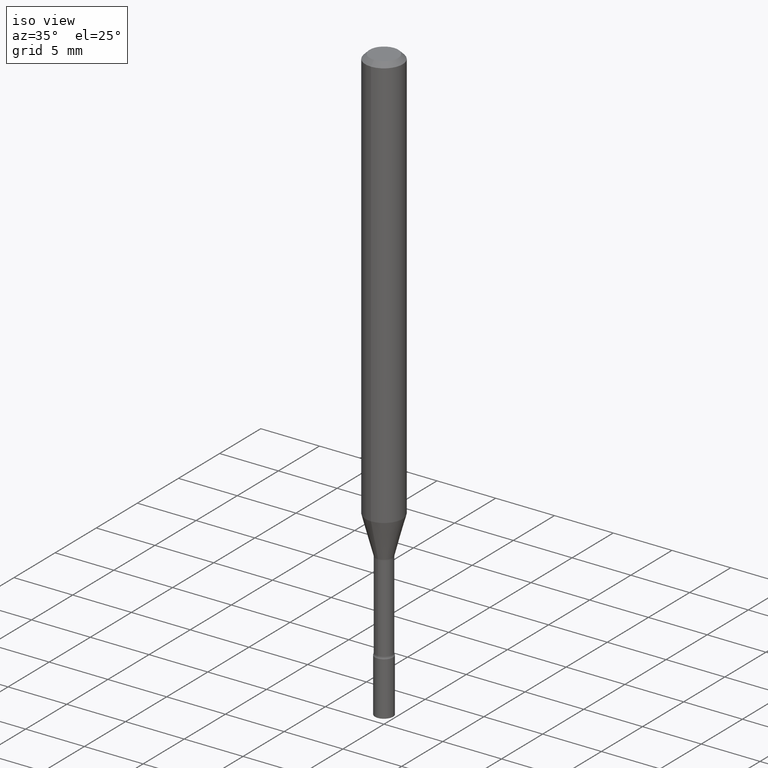
[diagram: clean part render]
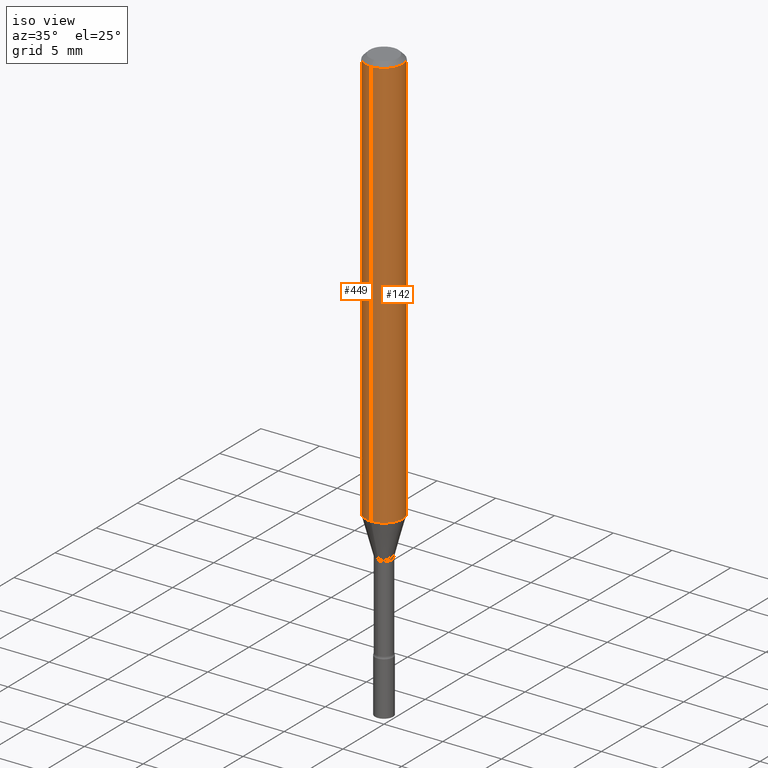
[diagram: same view with one multi-face feature highlighted, each face labeled with its STEP entity id]
A machine part, iso view. The highlighted faces form ONE feature: a constant-radius fillet chain: 2 tangent blend faces with common blend radius 1.5875 mm. The faces share edges in the B-rep.
Their STEP definitions:
[1] entity #449 (Cylinder):
#4 = DIRECTION ( 'NONE',  ( -6.982962677686265922E-15, -1.000000000000000000, 3.491603899015669090E-15 ) ) ;
#10 = ORIENTED_EDGE ( 'NONE', *, *, #105, .T. ) ;
#14 = DIRECTION ( 'NONE',  ( -6.982962677686265922E-15, -1.000000000000000000, 4.370956789862821150E-15 ) ) ;
#22 = CARTESIAN_POINT ( 'NONE',  ( -4.364351673553916201E-16, -0.06250000000000000000, 2.182252436884793182E-16 ) ) ;
#36 = CARTESIAN_POINT ( 'NONE',  ( 4.440892098500967344E-16, 0.06249999999999993755, -0.01500000000000024751 ) ) ;
#43 = EDGE_CURVE ( 'NONE', #404, #53, #149, .T. ) ;
#53 = VERTEX_POINT ( 'NONE', #140 ) ;
#86 = CYLINDRICAL_SURFACE ( 'NONE', #211, 0.06250000000000000000 ) ;
#97 = ORIENTED_EDGE ( 'NONE', *, *, #159, .F. ) ;
#100 = VERTEX_POINT ( 'NONE', #267 ) ;
#105 = EDGE_CURVE ( 'NONE', #53, #100, #265, .T. ) ;
#115 = CARTESIAN_POINT ( 'NONE',  ( 4.440892098500625669E-16, 0.06250000000000000000, -2.182252436884793182E-16 ) ) ;
#139 = FACE_OUTER_BOUND ( 'NONE', #262, .T. ) ;
#140 = CARTESIAN_POINT ( 'NONE',  ( -4.364351673553577484E-16, -0.06250000000000488498, -1.391990657300387513 ) ) ;
#149 = CIRCLE ( 'NONE', #290, 0.06250000000000000000 ) ;
#159 = EDGE_CURVE ( 'NONE', #404, #433, #311, .T. ) ;
#174 = VECTOR ( 'NONE', #346, 39.37007874015748143 ) ;
#179 = CARTESIAN_POINT ( 'NONE',  ( 3.403950599759840032E-29, -4.860280006423417622E-15, -1.391990657300387735 ) ) ;
#211 = AXIS2_PLACEMENT_3D ( 'NONE', #486, #479, #4 ) ;
#240 = DIRECTION ( 'NONE',  ( -2.445383222874086491E-29, 3.491603899015669090E-15, 1.000000000000000000 ) ) ;
#262 = EDGE_LOOP ( 'NONE', ( #97, #308, #10, #500 ) ) ;
#265 = LINE ( 'NONE', #22, #174 ) ;
#267 = CARTESIAN_POINT ( 'NONE',  ( -4.364351673553912750E-16, -0.06250000000000005551, -0.01499999999999981209 ) ) ;
#290 = AXIS2_PLACEMENT_3D ( 'NONE', #179, #336, #14 ) ;
#308 = ORIENTED_EDGE ( 'NONE', *, *, #43, .T. ) ;
#311 = LINE ( 'NONE', #115, #448 ) ;
#336 = DIRECTION ( 'NONE',  ( -2.445383222874086491E-29, 3.491603899015669090E-15, 1.000000000000000000 ) ) ;
#346 = DIRECTION ( 'NONE',  ( -2.445383222874086211E-29, 3.491603899015669090E-15, 1.000000000000000000 ) ) ;
#382 = EDGE_CURVE ( 'NONE', #433, #100, #395, .T. ) ;
#388 = DIRECTION ( 'NONE',  ( -2.445383222874086211E-29, 3.491603899015669090E-15, 1.000000000000000000 ) ) ;
#395 = CIRCLE ( 'NONE', #416, 0.06250000000000000000 ) ;
#398 = CARTESIAN_POINT ( 'NONE',  ( 4.440892098500963400E-16, 0.06249999999999510808, -1.391990657300387957 ) ) ;
#404 = VERTEX_POINT ( 'NONE', #398 ) ;
#416 = AXIS2_PLACEMENT_3D ( 'NONE', #513, #240, #440 ) ;
#433 = VERTEX_POINT ( 'NONE', #36 ) ;
#440 = DIRECTION ( 'NONE',  ( -6.982962677686265922E-15, -1.000000000000000000, 3.483106191921935554E-15 ) ) ;
#448 = VECTOR ( 'NONE', #388, 39.37007874015748143 ) ;
#449 = ADVANCED_FACE ( 'NONE', ( #139 ), #86, .T. ) ;
#479 = DIRECTION ( 'NONE',  ( -2.445383222874086491E-29, 3.491603899015669090E-15, 1.000000000000000000 ) ) ;
#486 = CARTESIAN_POINT ( 'NONE',  ( 0.000000000000000000, 0.000000000000000000, 0.000000000000000000 ) ) ;
#500 = ORIENTED_EDGE ( 'NONE', *, *, #382, .F. ) ;
#513 = CARTESIAN_POINT ( 'NONE',  ( 3.668074834311136918E-31, -5.237405848523514187E-17, -0.01500000000000003067 ) ) ;
[2] entity #142 (Cylinder):
#15 = CIRCLE ( 'NONE', #317, 0.06250000000000000000 ) ;
#22 = CARTESIAN_POINT ( 'NONE',  ( -4.364351673553916201E-16, -0.06250000000000000000, 2.182252436884793182E-16 ) ) ;
#36 = CARTESIAN_POINT ( 'NONE',  ( 4.440892098500967344E-16, 0.06249999999999993755, -0.01500000000000024751 ) ) ;
#53 = VERTEX_POINT ( 'NONE', #140 ) ;
#71 = DIRECTION ( 'NONE',  ( -2.445383222874086491E-29, 3.491603899015669090E-15, 1.000000000000000000 ) ) ;
#100 = VERTEX_POINT ( 'NONE', #267 ) ;
#105 = EDGE_CURVE ( 'NONE', #53, #100, #265, .T. ) ;
#114 = DIRECTION ( 'NONE',  ( -2.445383222874086491E-29, 3.491603899015669090E-15, 1.000000000000000000 ) ) ;
#115 = CARTESIAN_POINT ( 'NONE',  ( 4.440892098500625669E-16, 0.06250000000000000000, -2.182252436884793182E-16 ) ) ;
#134 = EDGE_CURVE ( 'NONE', #100, #433, #15, .T. ) ;
#138 = ORIENTED_EDGE ( 'NONE', *, *, #134, .F. ) ;
#140 = CARTESIAN_POINT ( 'NONE',  ( -4.364351673553577484E-16, -0.06250000000000488498, -1.391990657300387513 ) ) ;
#142 = ADVANCED_FACE ( 'NONE', ( #189 ), #508, .T. ) ;
#159 = EDGE_CURVE ( 'NONE', #404, #433, #311, .T. ) ;
#174 = VECTOR ( 'NONE', #346, 39.37007874015748143 ) ;
#189 = FACE_OUTER_BOUND ( 'NONE', #452, .T. ) ;
#225 = ORIENTED_EDGE ( 'NONE', *, *, #248, .T. ) ;
#231 = DIRECTION ( 'NONE',  ( -6.982962677686265922E-15, -1.000000000000000000, 4.370956789862821150E-15 ) ) ;
#232 = ORIENTED_EDGE ( 'NONE', *, *, #105, .F. ) ;
#248 = EDGE_CURVE ( 'NONE', #53, #404, #378, .T. ) ;
#265 = LINE ( 'NONE', #22, #174 ) ;
#267 = CARTESIAN_POINT ( 'NONE',  ( -4.364351673553912750E-16, -0.06250000000000005551, -0.01499999999999981209 ) ) ;
#268 = CARTESIAN_POINT ( 'NONE',  ( 3.403950599759840032E-29, -4.860280006423417622E-15, -1.391990657300387735 ) ) ;
#309 = AXIS2_PLACEMENT_3D ( 'NONE', #354, #71, #430 ) ;
#311 = LINE ( 'NONE', #115, #448 ) ;
#315 = AXIS2_PLACEMENT_3D ( 'NONE', #268, #419, #231 ) ;
#317 = AXIS2_PLACEMENT_3D ( 'NONE', #355, #114, #423 ) ;
#334 = ORIENTED_EDGE ( 'NONE', *, *, #159, .T. ) ;
#346 = DIRECTION ( 'NONE',  ( -2.445383222874086211E-29, 3.491603899015669090E-15, 1.000000000000000000 ) ) ;
#354 = CARTESIAN_POINT ( 'NONE',  ( 0.000000000000000000, 0.000000000000000000, 0.000000000000000000 ) ) ;
#355 = CARTESIAN_POINT ( 'NONE',  ( 3.668074834311136918E-31, -5.237405848523514187E-17, -0.01500000000000003067 ) ) ;
#378 = CIRCLE ( 'NONE', #315, 0.06250000000000000000 ) ;
#388 = DIRECTION ( 'NONE',  ( -2.445383222874086211E-29, 3.491603899015669090E-15, 1.000000000000000000 ) ) ;
#398 = CARTESIAN_POINT ( 'NONE',  ( 4.440892098500963400E-16, 0.06249999999999510808, -1.391990657300387957 ) ) ;
#404 = VERTEX_POINT ( 'NONE', #398 ) ;
#419 = DIRECTION ( 'NONE',  ( -2.445383222874086491E-29, 3.491603899015669090E-15, 1.000000000000000000 ) ) ;
#423 = DIRECTION ( 'NONE',  ( -6.982962677686265922E-15, -1.000000000000000000, 3.483106191921935554E-15 ) ) ;
#430 = DIRECTION ( 'NONE',  ( -6.982962677686265922E-15, -1.000000000000000000, 3.491603899015669090E-15 ) ) ;
#433 = VERTEX_POINT ( 'NONE', #36 ) ;
#448 = VECTOR ( 'NONE', #388, 39.37007874015748143 ) ;
#452 = EDGE_LOOP ( 'NONE', ( #225, #334, #138, #232 ) ) ;
#508 = CYLINDRICAL_SURFACE ( 'NONE', #309, 0.06250000000000000000 ) ;